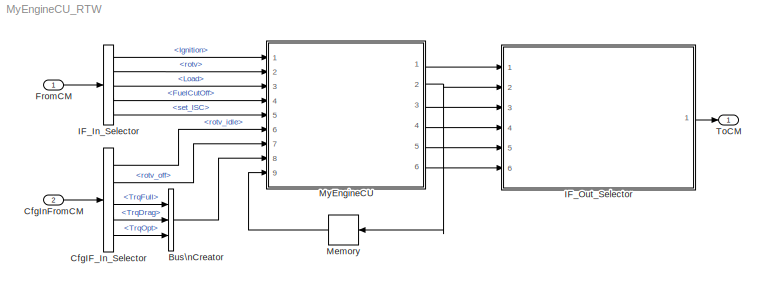
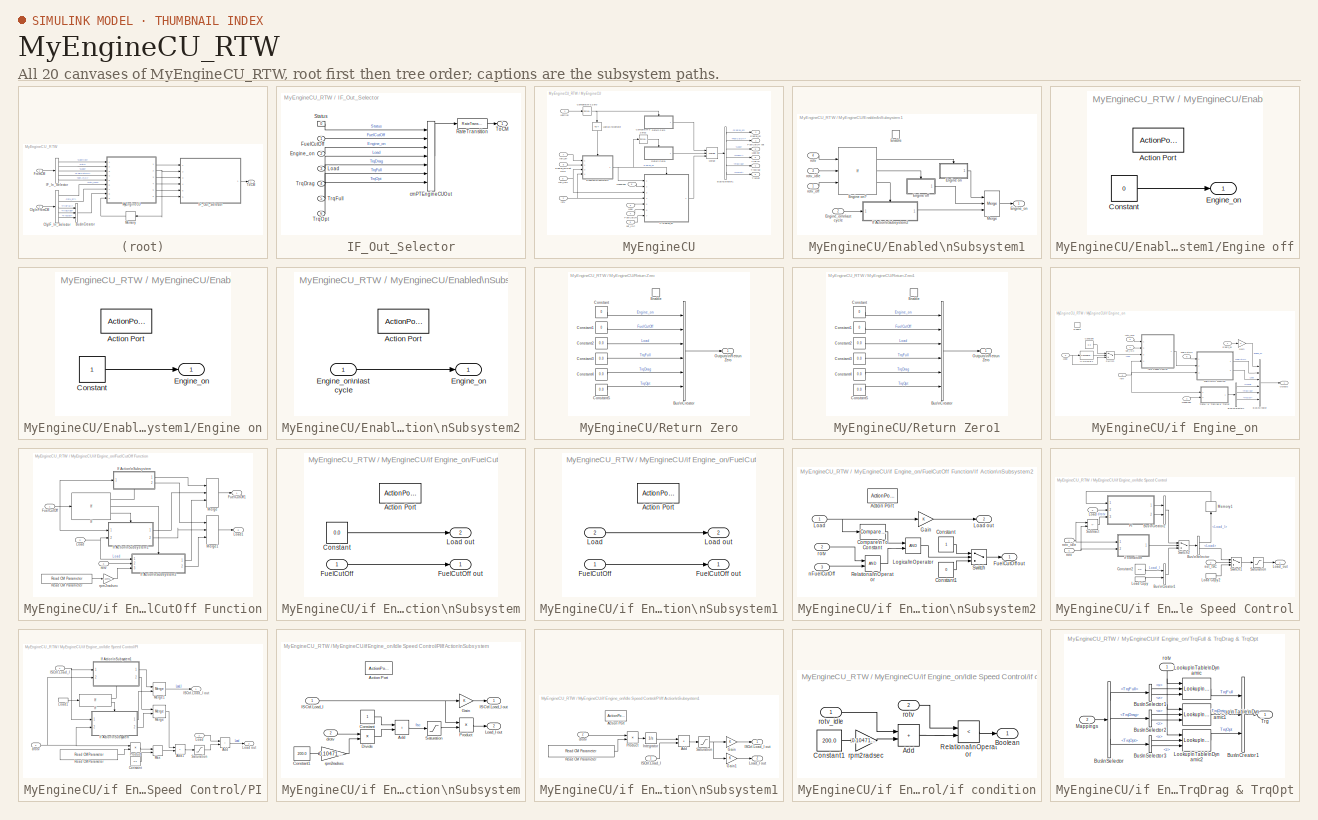
[diagram: thumbnail index - all 20 canvases of the model, root first then tree order]
MODEL MyEngineCU_RTW
KIND model
CONFIG InitFcn = vehicle = 'Car'; if ~length(which('cmcmd')), cmenv; end\nMyEngineCU_RTW_bus
CONFIG PreLoadFcn = vehicle = 'Car'; if ~length(which('cmcmd')), cmenv; end\nMyEngineCU_RTW_bus
BLOCK [BusCreator] Bus\nCreator
  DisplayOption = bar
  InheritFromInputs = on
  Inputs = 3
  Ports = [3, 1]
  SID = 19
BLOCK [BusSelector] CfgIF_In_Selector
  OutputSignals = rotv_idle,rotv_off,TrqFull,TrqDrag,TrqOpt
  Ports = [1, 5]
  SID = 9
BLOCK [Inport] CfgInFromCM
  OutDataTypeStr = Bus: cmPTEngineCUCfgIn
  Port = 2
  SID = 8
BLOCK [Inport] FromCM
  OutDataTypeStr = Bus: cmPTEngineCUIn
  SID = 1
BLOCK [BusSelector] IF_In_Selector
  OutputSignals = Ignition,rotv,Load,FuelCutOff,set_ISC
  Ports = [1, 5]
  SID = 2
BLOCK [SubSystem] IF_Out_Selector
  OpenFcn = cmSignalSelect('SignalSelection_CB',gcb)
  Ports = [6, 1]
  RequestExecContextInheritance = off
  SID = 5
  UserData = DataTag0
  UserDataPersistent = on
BLOCK [Inport] IF_Out_Selector/Engine_on
  Port = 2
  SID = 217
BLOCK [Inport] IF_Out_Selector/FuelCutOff
  SID = 216
BLOCK [Inport] IF_Out_Selector/Load
  Port = 3
  SID = 218
BLOCK [RateTransition] IF_Out_Selector/RateTransition
  OutPortSampleTime = str2num(get_param(bdroot,'FixedStep'))
  SID = 6
BLOCK [Constant] IF_Out_Selector/Status
  SID = 12
  Value = 0
BLOCK [Outport] IF_Out_Selector/ToCM
  SID = 7
  VectorParamsAs1DForOutWhenUnconnected = off
BLOCK [Inport] IF_Out_Selector/TrqDrag
  Port = 4
  SID = 219
BLOCK [Inport] IF_Out_Selector/TrqFull
  Port = 5
  SID = 220
BLOCK [Inport] IF_Out_Selector/TrqOpt
  Port = 6
  SID = 221
BLOCK [BusCreator] IF_Out_Selector/cmPTEngineCUOut
  InheritFromInputs = on
  Inputs = 7
  Ports = [7, 1]
  SID = 11
BLOCK [Memory] Memory
  SID = 20
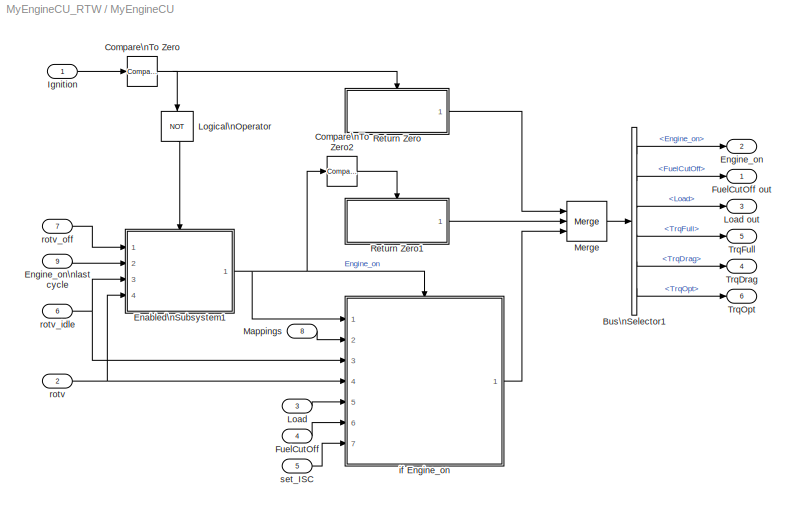
BLOCK [SubSystem] MyEngineCU
  Ports = [9, 6]
  RequestExecContextInheritance = off
  SID = 21
BLOCK [BusSelector] MyEngineCU/Bus\nSelector1
  OutputSignals = Engine_on,FuelCutOff,Load,TrqFull,TrqDrag,TrqOpt
  Ports = [1, 6]
  SID = 31
BLOCK [Reference] MyEngineCU/Compare\nTo Zero  REF=simulink/Logic and Bit\nOperations/Compare\nTo Zero
  OutDataTypeStr = uint8
  Ports = [1, 1]
  SID = 32
  SourceBlock = simulink/Logic and Bit\nOperations/Compare\nTo Zero
  SourceProductBaseCode = SL
  SourceType = Compare To Zero
  ZeroCross = off
  relop = ==
BLOCK [Reference] MyEngineCU/Compare\nTo Zero2  REF=simulink/Logic and Bit\nOperations/Compare\nTo Zero
  NameLocation = top
  OutDataTypeStr = uint8
  Ports = [1, 1]
  SID = 33
  SourceBlock = simulink/Logic and Bit\nOperations/Compare\nTo Zero
  SourceProductBaseCode = SL
  SourceType = Compare To Zero
  ZeroCross = off
  relop = ==
BLOCK [SubSystem] MyEngineCU/Enabled\nSubsystem1
  Ports = [4, 1, 1]
  RequestExecContextInheritance = off
  SID = 34
  TreatAsAtomicUnit = on
BLOCK [EnablePort] MyEngineCU/Enabled\nSubsystem1/Enable
  Ports = []
  SID = 39
BLOCK [SubSystem] MyEngineCU/Enabled\nSubsystem1/Engine off
  Ports = [0, 1, 0, 0, 0, 0, 0, 1]
  RequestExecContextInheritance = off
  SID = 40
  TreatAsAtomicUnit = on
BLOCK [ActionPort] MyEngineCU/Enabled\nSubsystem1/Engine off/Action Port
  ActionPortLabel = elseif { }
  SID = 41
BLOCK [Constant] MyEngineCU/Enabled\nSubsystem1/Engine off/Constant
  SID = 42
  Value = 0
BLOCK [Outport] MyEngineCU/Enabled\nSubsystem1/Engine off/Engine_on
  InitialOutput = 0
  SID = 43
  VectorParamsAs1DForOutWhenUnconnected = off
BLOCK [SubSystem] MyEngineCU/Enabled\nSubsystem1/Engine on
  Ports = [0, 1, 0, 0, 0, 0, 0, 1]
  RequestExecContextInheritance = off
  SID = 44
  TreatAsAtomicUnit = on
BLOCK [ActionPort] MyEngineCU/Enabled\nSubsystem1/Engine on/Action Port
  ActionPortLabel = if { }
  SID = 45
BLOCK [Constant] MyEngineCU/Enabled\nSubsystem1/Engine on/Constant
  SID = 46
BLOCK [Outport] MyEngineCU/Enabled\nSubsystem1/Engine on/Engine_on
  InitialOutput = 1
  SID = 47
  VectorParamsAs1DForOutWhenUnconnected = off
BLOCK [If] MyEngineCU/Enabled\nSubsystem1/Engine on?
  ElseIfExpressions = u1 < u3
  IfExpression = u1 > u2
  NumInputs = 3
  Ports = [3, 3]
  SID = 48
BLOCK [Outport] MyEngineCU/Enabled\nSubsystem1/Engine_on
  SID = 54
  VectorParamsAs1DForOutWhenUnconnected = off
BLOCK [Inport] MyEngineCU/Enabled\nSubsystem1/Engine_on\nlast cycle
  Port = 2
  SID = 36
BLOCK [SubSystem] MyEngineCU/Enabled\nSubsystem1/If Action\nSubsystem2
  Ports = [1, 1, 0, 0, 0, 0, 0, 1]
  RequestExecContextInheritance = off
  SID = 49
  TreatAsAtomicUnit = on
BLOCK [ActionPort] MyEngineCU/Enabled\nSubsystem1/If Action\nSubsystem2/Action Port
  ActionPortLabel = else { }
  SID = 51
BLOCK [Outport] MyEngineCU/Enabled\nSubsystem1/If Action\nSubsystem2/Engine_on
  SID = 52
  VectorParamsAs1DForOutWhenUnconnected = off
BLOCK [Inport] MyEngineCU/Enabled\nSubsystem1/If Action\nSubsystem2/Engine_on\nlast cycle
  SID = 50
BLOCK [Merge] MyEngineCU/Enabled\nSubsystem1/Merge
  Inputs = 3
  Ports = [3, 1]
  SID = 53
BLOCK [Inport] MyEngineCU/Enabled\nSubsystem1/rotv
  Port = 4
  SID = 38
BLOCK [Inport] MyEngineCU/Enabled\nSubsystem1/rotv_idle
  Port = 3
  SID = 37
BLOCK [Inport] MyEngineCU/Enabled\nSubsystem1/rotv_off
  SID = 35
BLOCK [Outport] MyEngineCU/Engine_on
  Port = 2
  SID = 211
  VectorParamsAs1DForOutWhenUnconnected = off
BLOCK [Inport] MyEngineCU/Engine_on\nlast cycle
  Port = 9
  SID = 30
BLOCK [Inport] MyEngineCU/FuelCutOff
  Port = 4
  SID = 25
BLOCK [Outport] MyEngineCU/FuelCutOff out
  SID = 210
  VectorParamsAs1DForOutWhenUnconnected = off
BLOCK [Inport] MyEngineCU/Ignition
  SID = 22
BLOCK [Inport] MyEngineCU/Load
  Port = 3
  SID = 24
BLOCK [Outport] MyEngineCU/Load out
  Port = 3
  SID = 212
  VectorParamsAs1DForOutWhenUnconnected = off
BLOCK [Logic] MyEngineCU/Logical\nOperator
  AllPortsSameDT = off
  NameLocation = left
  Operator = NOT
  OutDataTypeStr = boolean
  Ports = [1, 1]
  SID = 55
BLOCK [Inport] MyEngineCU/Mappings
  Port = 8
  SID = 29
BLOCK [Merge] MyEngineCU/Merge
  Inputs = 3
  Ports = [3, 1]
  SID = 56
BLOCK [SubSystem] MyEngineCU/Return Zero
  Ports = [0, 1, 1]
  RequestExecContextInheritance = off
  SID = 57
  TreatAsAtomicUnit = on
BLOCK [BusCreator] MyEngineCU/Return Zero/Bus\nCreator
  DisplayOption = bar
  InheritFromInputs = on
  Inputs = 6
  Ports = [6, 1]
  SID = 59
BLOCK [Constant] MyEngineCU/Return Zero/Constant
  SID = 60
  Value = 0
BLOCK [Constant] MyEngineCU/Return Zero/Constant1
  SID = 61
  Value = 0
BLOCK [Constant] MyEngineCU/Return Zero/Constant2
  SID = 62
  Value = 0.0
BLOCK [Constant] MyEngineCU/Return Zero/Constant3
  SID = 63
  Value = 0.0
BLOCK [Constant] MyEngineCU/Return Zero/Constant4
  SID = 64
  Value = 0.0
BLOCK [Constant] MyEngineCU/Return Zero/Constant5
  SID = 65
  Value = 0.0
BLOCK [EnablePort] MyEngineCU/Return Zero/Enable
  Ports = []
  SID = 58
BLOCK [Outport] MyEngineCU/Return Zero/Outputs\nRetrun Zero
  InitialOutput = 0
  SID = 66
  VectorParamsAs1DForOutWhenUnconnected = off
BLOCK [SubSystem] MyEngineCU/Return Zero1
  Ports = [0, 1, 1]
  RequestExecContextInheritance = off
  SID = 67
  TreatAsAtomicUnit = on
BLOCK [BusCreator] MyEngineCU/Return Zero1/Bus\nCreator
  DisplayOption = bar
  InheritFromInputs = on
  Inputs = 6
  Ports = [6, 1]
  SID = 69
BLOCK [Constant] MyEngineCU/Return Zero1/Constant
  SID = 70
  Value = 0
BLOCK [Constant] MyEngineCU/Return Zero1/Constant1
  SID = 71
  Value = 0
BLOCK [Constant] MyEngineCU/Return Zero1/Constant2
  SID = 72
  Value = 0.0
BLOCK [Constant] MyEngineCU/Return Zero1/Constant3
  SID = 73
  Value = 0.0
BLOCK [Constant] MyEngineCU/Return Zero1/Constant4
  SID = 74
  Value = 0.0
BLOCK [Constant] MyEngineCU/Return Zero1/Constant5
  SID = 75
  Value = 0.0
BLOCK [EnablePort] MyEngineCU/Return Zero1/Enable
  Ports = []
  SID = 68
BLOCK [Outport] MyEngineCU/Return Zero1/Outputs\nRetrun Zero
  InitialOutput = 0
  SID = 76
  VectorParamsAs1DForOutWhenUnconnected = off
BLOCK [Outport] MyEngineCU/TrqDrag
  Port = 4
  SID = 213
  VectorParamsAs1DForOutWhenUnconnected = off
BLOCK [Outport] MyEngineCU/TrqFull
  Port = 5
  SID = 214
  VectorParamsAs1DForOutWhenUnconnected = off
BLOCK [Outport] MyEngineCU/TrqOpt
  Port = 6
  SID = 215
  VectorParamsAs1DForOutWhenUnconnected = off
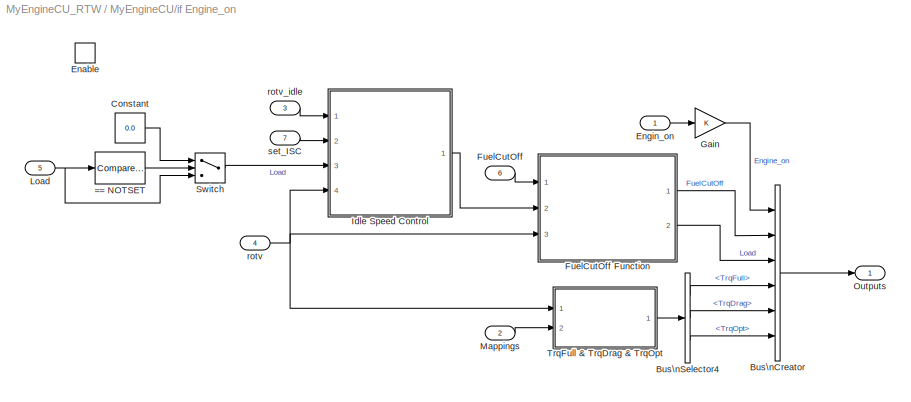
BLOCK [SubSystem] MyEngineCU/if Engine_on
  Ports = [7, 1, 1]
  RequestExecContextInheritance = off
  SID = 77
  TreatAsAtomicUnit = on
BLOCK [Reference] MyEngineCU/if Engine_on/== NOTSET  REF=simulink/Logic and Bit\nOperations/Compare\nTo Constant
  OutDataTypeStr = uint8
  Ports = [1, 1]
  SID = 86
  SourceBlock = simulink/Logic and Bit\nOperations/Compare\nTo Constant
  SourceProductBaseCode = SL
  SourceType = Compare To Constant
  ZeroCross = off
  const = -9999
  relop = ==
BLOCK [BusCreator] MyEngineCU/if Engine_on/Bus\nCreator
  DisplayOption = bar
  InheritFromInputs = on
  Inputs = 6
  Ports = [6, 1]
  SID = 87
BLOCK [BusSelector] MyEngineCU/if Engine_on/Bus\nSelector4
  OutputSignals = TrqFull,TrqDrag,TrqOpt
  Ports = [1, 3]
  SID = 88
BLOCK [Constant] MyEngineCU/if Engine_on/Constant
  SID = 89
  Value = 0.0
BLOCK [EnablePort] MyEngineCU/if Engine_on/Enable
  Ports = []
  SID = 85
BLOCK [Inport] MyEngineCU/if Engine_on/Engin_on
  SID = 78
BLOCK [Inport] MyEngineCU/if Engine_on/FuelCutOff
  Port = 6
  SID = 83
BLOCK [SubSystem] MyEngineCU/if Engine_on/FuelCutOff Function
  Ports = [3, 2]
  RequestExecContextInheritance = off
  SID = 90
BLOCK [Inport] MyEngineCU/if Engine_on/FuelCutOff Function/FuelCutOff
  SID = 91
BLOCK [Outport] MyEngineCU/if Engine_on/FuelCutOff Function/FuelCutOff1
  SID = 125
  VectorParamsAs1DForOutWhenUnconnected = off
BLOCK [If] MyEngineCU/if Engine_on/FuelCutOff Function/If
  ElseIfExpressions = u1 == -99999
  IfExpression = u1 == 1
  Ports = [1, 3]
  SID = 94
BLOCK [SubSystem] MyEngineCU/if Engine_on/FuelCutOff Function/If Action\nSubsystem
  NameLocation = top
  Ports = [1, 2, 0, 0, 0, 0, 0, 1]
  RequestExecContextInheritance = off
  SID = 95
  TreatAsAtomicUnit = on
BLOCK [ActionPort] MyEngineCU/if Engine_on/FuelCutOff Function/If Action\nSubsystem/Action Port
  ActionPortLabel = if { }
  SID = 97
BLOCK [Constant] MyEngineCU/if Engine_on/FuelCutOff Function/If Action\nSubsystem/Constant
  SID = 98
  Value = 0.0
BLOCK [Inport] MyEngineCU/if Engine_on/FuelCutOff Function/If Action\nSubsystem/FuelCutOff
  SID = 96
BLOCK [Outport] MyEngineCU/if Engine_on/FuelCutOff Function/If Action\nSubsystem/FuelCutOff out
  SID = 99
  VectorParamsAs1DForOutWhenUnconnected = off
BLOCK [Outport] MyEngineCU/if Engine_on/FuelCutOff Function/If Action\nSubsystem/Load out
  InitialOutput = 0
  Port = 2
  SID = 100
  VectorParamsAs1DForOutWhenUnconnected = off
BLOCK [SubSystem] MyEngineCU/if Engine_on/FuelCutOff Function/If Action\nSubsystem1
  Ports = [2, 2, 0, 0, 0, 0, 0, 1]
  RequestExecContextInheritance = off
  SID = 101
  TreatAsAtomicUnit = on
BLOCK [ActionPort] MyEngineCU/if Engine_on/FuelCutOff Function/If Action\nSubsystem1/Action Port
  ActionPortLabel = else { }
  SID = 104
BLOCK [Inport] MyEngineCU/if Engine_on/FuelCutOff Function/If Action\nSubsystem1/FuelCutOff
  SID = 102
BLOCK [Outport] MyEngineCU/if Engine_on/FuelCutOff Function/If Action\nSubsystem1/FuelCutOff out
  SID = 105
  VectorParamsAs1DForOutWhenUnconnected = off
BLOCK [Inport] MyEngineCU/if Engine_on/FuelCutOff Function/If Action\nSubsystem1/Load
  Port = 2
  SID = 103
BLOCK [Outport] MyEngineCU/if Engine_on/FuelCutOff Function/If Action\nSubsystem1/Load out
  Port = 2
  SID = 106
  VectorParamsAs1DForOutWhenUnconnected = off
BLOCK [SubSystem] MyEngineCU/if Engine_on/FuelCutOff Function/If Action\nSubsystem2
  Ports = [3, 2, 0, 0, 0, 0, 0, 1]
  RequestExecContextInheritance = off
  SID = 107
  TreatAsAtomicUnit = on
BLOCK [ActionPort] MyEngineCU/if Engine_on/FuelCutOff Function/If Action\nSubsystem2/Action Port
  ActionPortLabel = elseif { }
  SID = 111
BLOCK [Reference] MyEngineCU/if Engine_on/FuelCutOff Function/If Action\nSubsystem2/Compare\nTo Constant  REF=simulink/Logic and Bit\nOperations/Compare\nTo Constant
  OutDataTypeStr = uint8
  Ports = [1, 1]
  SID = 112
  SourceBlock = simulink/Logic and Bit\nOperations/Compare\nTo Constant
  SourceProductBaseCode = SL
  SourceType = Compare To Constant
  ZeroCross = off
  const = 1e-3
  relop = <=
BLOCK [Constant] MyEngineCU/if Engine_on/FuelCutOff Function/If Action\nSubsystem2/Constant
  SID = 113
BLOCK [Constant] MyEngineCU/if Engine_on/FuelCutOff Function/If Action\nSubsystem2/Constant1
  SID = 114
  Value = 0
BLOCK [Outport] MyEngineCU/if Engine_on/FuelCutOff Function/If Action\nSubsystem2/FuelCutOff out
  SID = 119
  VectorParamsAs1DForOutWhenUnconnected = off
BLOCK [Gain] MyEngineCU/if Engine_on/FuelCutOff Function/If Action\nSubsystem2/Gain
  SID = 115
BLOCK [Inport] MyEngineCU/if Engine_on/FuelCutOff Function/If Action\nSubsystem2/Load
  SID = 108
BLOCK [Outport] MyEngineCU/if Engine_on/FuelCutOff Function/If Action\nSubsystem2/Load out
  Port = 2
  SID = 120
  VectorParamsAs1DForOutWhenUnconnected = off
BLOCK [Logic] MyEngineCU/if Engine_on/FuelCutOff Function/If Action\nSubsystem2/Logical\nOperator
  AllPortsSameDT = off
  OutDataTypeStr = boolean
  Ports = [2, 1]
  SID = 116
BLOCK [RelationalOperator] MyEngineCU/if Engine_on/FuelCutOff Function/If Action\nSubsystem2/Relational\nOperator
  InputSameDT = off
  OutDataTypeStr = boolean
  Ports = [2, 1]
  SID = 117
BLOCK [Switch] MyEngineCU/if Engine_on/FuelCutOff Function/If Action\nSubsystem2/Switch
  Criteria = u2 ~= 0
  InputSameDT = off
  SID = 118
  SaturateOnIntegerOverflow = off
BLOCK [Inport] MyEngineCU/if Engine_on/FuelCutOff Function/If Action\nSubsystem2/nFuelCutOff
  Port = 3
  SID = 110
BLOCK [Inport] MyEngineCU/if Engine_on/FuelCutOff Function/If Action\nSubsystem2/rotv
  Port = 2
  SID = 109
BLOCK [Inport] MyEngineCU/if Engine_on/FuelCutOff Function/Load
  Port = 2
  SID = 92
BLOCK [Outport] MyEngineCU/if Engine_on/FuelCutOff Function/Load1
  Port = 2
  SID = 126
  VectorParamsAs1DForOutWhenUnconnected = off
BLOCK [Merge] MyEngineCU/if Engine_on/FuelCutOff Function/Merge
  Inputs = 3
  Ports = [3, 1]
  SID = 121
BLOCK [Merge] MyEngineCU/if Engine_on/FuelCutOff Function/Merge1
  Inputs = 3
  Ports = [3, 1]
  SID = 122
BLOCK [Reference] MyEngineCU/if Engine_on/FuelCutOff Function/Read CM Parameter  REF=CarMaker4SL/Read CM Parameter
  Ports = [0, 1]
  SID = 123
  SourceBlock = CarMaker4SL/Read CM Parameter
  SourceProductName = CarMaker4SL
  SourceType = Read CarMaker Info File Parameter
  xdefaults = 1600
  xfile = Vehicle
  xkey = PowerTrain.ECU.FuelCutOff
  xmuxed = on
  xnout = 1
BLOCK [Inport] MyEngineCU/if Engine_on/FuelCutOff Function/rotv
  Port = 3
  SID = 93
BLOCK [Gain] MyEngineCU/if Engine_on/FuelCutOff Function/rpm2radsec
  Gain = 0.104719755
  SID = 124
BLOCK [Gain] MyEngineCU/if Engine_on/Gain
  SID = 127
BLOCK [SubSystem] MyEngineCU/if Engine_on/Idle Speed Control
  Ports = [4, 1]
  RequestExecContextInheritance = off
  SID = 128
BLOCK [BusCreator] MyEngineCU/if Engine_on/Idle Speed Control/Bus\nCreator1
  DisplayOption = bar
  InheritFromInputs = on
  Inputs = 2
  Ports = [2, 1]
  SID = 133
BLOCK [BusCreator] MyEngineCU/if Engine_on/Idle Speed Control/Bus\nCreator2
  DisplayOption = bar
  InheritFromInputs = on
  Inputs = 2
  Ports = [2, 1]
  SID = 134
BLOCK [BusSelector] MyEngineCU/if Engine_on/Idle Speed Control/Bus\nSelector
  OutputSignals = Load_I,Load
  Ports = [1, 2]
  SID = 135
BLOCK [Constant] MyEngineCU/if Engine_on/Idle Speed Control/Constant2
  SID = 136
  Value = 0.0
BLOCK [Inport] MyEngineCU/if Engine_on/Idle Speed Control/Load
  Port = 3
  SID = 131
BLOCK [InportShadow] MyEngineCU/if Engine_on/Idle Speed Control/Load Copy
  Port = 3
  SID = 137
BLOCK [InportShadow] MyEngineCU/if Engine_on/Idle Speed Control/Load Copy2
  Port = 3
  SID = 138
BLOCK [Outport] MyEngineCU/if Engine_on/Idle Speed Control/Load_out
  SID = 195
  VectorParamsAs1DForOutWhenUnconnected = off
BLOCK [Memory] MyEngineCU/if Engine_on/Idle Speed Control/Memory1
  InheritSampleTime = on
  NameLocation = left
  SID = 139
BLOCK [SubSystem] MyEngineCU/if Engine_on/Idle Speed Control/PI
  Ports = [3, 2]
  RequestExecContextInheritance = off
  SID = 140
BLOCK [Sum] MyEngineCU/if Engine_on/Idle Speed Control/PI/Add
  IconShape = rectangular
  Ports = [2, 1]
  SID = 144
BLOCK [Sum] MyEngineCU/if Engine_on/Idle Speed Control/PI/Add1
  IconShape = rectangular
  Ports = [2, 1]
  SID = 145
BLOCK [Constant] MyEngineCU/if Engine_on/Idle Speed Control/PI/Constant
  SID = 146
  Value = 0.0
BLOCK [Inport] MyEngineCU/if Engine_on/Idle Speed Control/PI/ISCtrl.Load_I
  SID = 141
BLOCK [Outport] MyEngineCU/if Engine_on/Idle Speed Control/PI/ISCtrl.Load_I out
  SID = 181
  VectorParamsAs1DForOutWhenUnconnected = off
BLOCK [If] MyEngineCU/if Engine_on/Idle Speed Control/PI/If
  IfExpression = u1 < 1e-3
  Ports = [1, 2]
  SID = 147
BLOCK [SubSystem] MyEngineCU/if Engine_on/Idle Speed Control/PI/If Action\nSubsystem
  Ports = [2, 2, 0, 0, 0, 0, 0, 1]
  RequestExecContextInheritance = off
  SID = 148
  TreatAsAtomicUnit = on
BLOCK [ActionPort] MyEngineCU/if Engine_on/Idle Speed Control/PI/If Action\nSubsystem/Action Port
  ActionPortLabel = else { }
  SID = 151
BLOCK [Sum] MyEngineCU/if Engine_on/Idle Speed Control/PI/If Action\nSubsystem/Add
  IconShape = rectangular
  Ports = [2, 1]
  SID = 152
BLOCK [Constant] MyEngineCU/if Engine_on/Idle Speed Control/PI/If Action\nSubsystem/Constant
  SID = 153
BLOCK [Constant] MyEngineCU/if Engine_on/Idle Speed Control/PI/If Action\nSubsystem/Constant1
  SID = 154
  Value = 200.0
BLOCK [Product] MyEngineCU/if Engine_on/Idle Speed Control/PI/If Action\nSubsystem/Divide
  Inputs = */
  Ports = [2, 1]
  SID = 155
BLOCK [Gain] MyEngineCU/if Engine_on/Idle Speed Control/PI/If Action\nSubsystem/Gain
  SID = 156
BLOCK [Inport] MyEngineCU/if Engine_on/Idle Speed Control/PI/If Action\nSubsystem/ISCtrl.Load_I
  SID = 149
BLOCK [Outport] MyEngineCU/if Engine_on/Idle Speed Control/PI/If Action\nSubsystem/ISCtrl.Load_I out
  SID = 160
  VectorParamsAs1DForOutWhenUnconnected = off
BLOCK [Outport] MyEngineCU/if Engine_on/Idle Speed Control/PI/If Action\nSubsystem/Load_I out
  Port = 2
  SID = 161
  VectorParamsAs1DForOutWhenUnconnected = off
BLOCK [Product] MyEngineCU/if Engine_on/Idle Speed Control/PI/If Action\nSubsystem/Product
  Ports = [2, 1]
  RndMeth = Zero
  SID = 157
BLOCK [Saturate] MyEngineCU/if Engine_on/Idle Speed Control/PI/If Action\nSubsystem/Saturation
  LowerLimit = 0
  SID = 158
  UpperLimit = 1
BLOCK [Inport] MyEngineCU/if Engine_on/Idle Speed Control/PI/If Action\nSubsystem/drotv
  Port = 2
  SID = 150
BLOCK [Gain] MyEngineCU/if Engine_on/Idle Speed Control/PI/If Action\nSubsystem/rpm2radsec
  Gain = 0.104719755
  SID = 159
BLOCK [SubSystem] MyEngineCU/if Engine_on/Idle Speed Control/PI/If Action\nSubsystem1
  NameLocation = top
  Ports = [2, 2, 0, 0, 0, 0, 0, 1]
  RequestExecContextInheritance = off
  SID = 162
  TreatAsAtomicUnit = on
BLOCK [ActionPort] MyEngineCU/if Engine_on/Idle Speed Control/PI/If Action\nSubsystem1/Action Port
  ActionPortLabel = if { }
  SID = 165
BLOCK [Sum] MyEngineCU/if Engine_on/Idle Speed Control/PI/If Action\nSubsystem1/Add
  IconShape = rectangular
  Ports = [2, 1]
  SID = 166
BLOCK [Gain] MyEngineCU/if Engine_on/Idle Speed Control/PI/If Action\nSubsystem1/Gain
  SID = 167
BLOCK [Gain] MyEngineCU/if Engine_on/Idle Speed Control/PI/If Action\nSubsystem1/Gain1
  SID = 168
BLOCK [Inport] MyEngineCU/if Engine_on/Idle Speed Control/PI/If Action\nSubsystem1/ISCtrl.Load_I
  SID = 163
BLOCK [Outport] MyEngineCU/if Engine_on/Idle Speed Control/PI/If Action\nSubsystem1/ISCtrl.Load_I out
  SID = 172
  VectorParamsAs1DForOutWhenUnconnected = off
BLOCK [Integrator] MyEngineCU/if Engine_on/Idle Speed Control/PI/If Action\nSubsystem1/Integrator
  Ports = [1, 1]
  SID = 222
BLOCK [Outport] MyEngineCU/if Engine_on/Idle Speed Control/PI/If Action\nSubsystem1/Load_I out
  Port = 2
  SID = 173
  VectorParamsAs1DForOutWhenUnconnected = off
BLOCK [Product] MyEngineCU/if Engine_on/Idle Speed Control/PI/If Action\nSubsystem1/Product
  Ports = [2, 1]
  RndMeth = Zero
  SID = 169
BLOCK [Reference] MyEngineCU/if Engine_on/Idle Speed Control/PI/If Action\nSubsystem1/Read CM Parameter  REF=CarMaker4SL/Read CM Parameter
  Ports = [0, 1]
  SID = 170
  SourceBlock = CarMaker4SL/Read CM Parameter
  SourceProductName = CarMaker4SL
  SourceType = Read CarMaker Info File Parameter
  xdefaults = []
  xfile = Vehicle
  xkey = PowerTrain.MyEngineCU.ISCtrl.I
  xmuxed = on
  xnout = 1
BLOCK [Saturate] MyEngineCU/if Engine_on/Idle Speed Control/PI/If Action\nSubsystem1/Saturation
  LowerLimit = 0
  SID = 171
  UpperLimit = 1
BLOCK [Inport] MyEngineCU/if Engine_on/Idle Speed Control/PI/If Action\nSubsystem1/drotv
  Port = 2
  SID = 164
BLOCK [Inport] MyEngineCU/if Engine_on/Idle Speed Control/PI/Load
  Port = 2
  SID = 142
BLOCK [Outport] MyEngineCU/if Engine_on/Idle Speed Control/PI/Load out
  Port = 2
  SID = 182
  VectorParamsAs1DForOutWhenUnconnected = off
BLOCK [InportShadow] MyEngineCU/if Engine_on/Idle Speed Control/PI/Load1
  Port = 2
  SID = 174
BLOCK [MinMax] MyEngineCU/if Engine_on/Idle Speed Control/PI/Max
  Function = max
  Inputs = 2
  Ports = [2, 1]
  SID = 175
BLOCK [Merge] MyEngineCU/if Engine_on/Idle Speed Control/PI/Merge
  Ports = [2, 1]
  SID = 176
BLOCK [Merge] MyEngineCU/if Engine_on/Idle Speed Control/PI/Merge1
  Ports = [2, 1]
  SID = 177
BLOCK [Product] MyEngineCU/if Engine_on/Idle Speed Control/PI/Product
  Ports = [2, 1]
  RndMeth = Zero
  SID = 178
BLOCK [Reference] MyEngineCU/if Engine_on/Idle Speed Control/PI/Read CM Parameter  REF=CarMaker4SL/Read CM Parameter
  Ports = [0, 1]
  SID = 179
  SourceBlock = CarMaker4SL/Read CM Parameter
  SourceProductName = CarMaker4SL
  SourceType = Read CarMaker Info File Parameter
  xdefaults = 0.1
  xfile = Vehicle
  xkey = PowerTrain.MyEngineCU.ISCtrl.P
  xmuxed = on
  xnout = 1
BLOCK [Saturate] MyEngineCU/if Engine_on/Idle Speed Control/PI/Saturation
  LowerLimit = 0
  SID = 180
  UpperLimit = 1
BLOCK [Inport] MyEngineCU/if Engine_on/Idle Speed Control/PI/drotv
  Port = 3
  SID = 143
BLOCK [Saturate] MyEngineCU/if Engine_on/Idle Speed Control/Saturation
  LowerLimit = 0
  SID = 183
  UpperLimit = 1
BLOCK [Sum] MyEngineCU/if Engine_on/Idle Speed Control/Subtract
  IconShape = rectangular
  Inputs = +-
  Ports = [2, 1]
  SID = 184
BLOCK [Switch] MyEngineCU/if Engine_on/Idle Speed Control/Switch1
  Criteria = u2 ~= 0
  InputSameDT = off
  NameLocation = top
  SID = 185
  SaturateOnIntegerOverflow = off
BLOCK [Switch] MyEngineCU/if Engine_on/Idle Speed Control/Switch2
  Criteria = u2 ~= 0
  InputSameDT = off
  NameLocation = top
  SID = 186
  SaturateOnIntegerOverflow = off
BLOCK [SubSystem] MyEngineCU/if Engine_on/Idle Speed Control/if condition
  Ports = [2, 1]
  RequestExecContextInheritance = off
  SID = 187
BLOCK [Sum] MyEngineCU/if Engine_on/Idle Speed Control/if condition/Add
  IconShape = rectangular
  Ports = [2, 1]
  SID = 190
BLOCK [Outport] MyEngineCU/if Engine_on/Idle Speed Control/if condition/Boolean
  SID = 194
  VectorParamsAs1DForOutWhenUnconnected = off
BLOCK [Constant] MyEngineCU/if Engine_on/Idle Speed Control/if condition/Constant1
  SID = 191
  Value = 200.0
BLOCK [RelationalOperator] MyEngineCU/if Engine_on/Idle Speed Control/if condition/Relational\nOperator
  InputSameDT = off
  Operator = <
  OutDataTypeStr = boolean
  Ports = [2, 1]
  SID = 192
BLOCK [Inport] MyEngineCU/if Engine_on/Idle Speed Control/if condition/rotv
  Port = 2
  SID = 189
BLOCK [Inport] MyEngineCU/if Engine_on/Idle Speed Control/if condition/rotv_idle
  SID = 188
BLOCK [Gain] MyEngineCU/if Engine_on/Idle Speed Control/if condition/rpm2radsec
  Gain = 0.104719755
  SID = 193
BLOCK [Inport] MyEngineCU/if Engine_on/Idle Speed Control/rotv
  Port = 4
  SID = 132
BLOCK [Inport] MyEngineCU/if Engine_on/Idle Speed Control/rotv_idle
  SID = 129
BLOCK [Inport] MyEngineCU/if Engine_on/Idle Speed Control/set_ISC
  Port = 2
  SID = 130
BLOCK [Inport] MyEngineCU/if Engine_on/Load
  Port = 5
  SID = 82
BLOCK [Inport] MyEngineCU/if Engine_on/Mappings
  Port = 2
  SID = 79
BLOCK [Outport] MyEngineCU/if Engine_on/Outputs
  SID = 209
  VectorParamsAs1DForOutWhenUnconnected = off
BLOCK [Switch] MyEngineCU/if Engine_on/Switch
  Criteria = u2 ~= 0
  InputSameDT = off
  SID = 196
  SaturateOnIntegerOverflow = off
BLOCK [SubSystem] MyEngineCU/if Engine_on/TrqFull & TrqDrag & TrqOpt
  Ports = [2, 1]
  RequestExecContextInheritance = off
  SID = 197
BLOCK [BusCreator] MyEngineCU/if Engine_on/TrqFull & TrqDrag & TrqOpt/Bus\nCreator1
  DisplayOption = bar
  InheritFromInputs = on
  Inputs = 3
  Ports = [3, 1]
  SID = 200
BLOCK [BusSelector] MyEngineCU/if Engine_on/TrqFull & TrqDrag & TrqOpt/Bus\nSelector
  OutputSignals = TrqFull,TrqDrag,TrqOpt
  Ports = [1, 3]
  SID = 201
BLOCK [BusSelector] MyEngineCU/if Engine_on/TrqFull & TrqDrag & TrqOpt/Bus\nSelector1
  OutputSignals = x,z
  Ports = [1, 2]
  SID = 202
BLOCK [BusSelector] MyEngineCU/if Engine_on/TrqFull & TrqDrag & TrqOpt/Bus\nSelector2
  OutputSignals = x,z
  Ports = [1, 2]
  SID = 203
BLOCK [BusSelector] MyEngineCU/if Engine_on/TrqFull & TrqDrag & TrqOpt/Bus\nSelector3
  OutputSignals = x,z
  Ports = [1, 2]
  SID = 204
BLOCK [Reference] MyEngineCU/if Engine_on/TrqFull & TrqDrag & TrqOpt/Lookup\nTable\nDynamic  REF=simulink/Lookup\nTables/Lookup\nTable\nDynamic
  DoSatur = off
  LockScale = off
  LookUpMeth = Interpolation-Use End Values
  OutDataType = float('double')
  OutDataTypeStr = float('double')
  OutScaling = 2^-10
  OutputDataTypeScalingMode = Specify via dialog
  Ports = [3, 1]
  RndMeth = Floor
  SID = 205
  SourceBlock = simulink/Lookup\nTables/Lookup\nTable\nDynamic
  SourceProductBaseCode = SL
  SourceType = Lookup Table Dynamic
BLOCK [Reference] MyEngineCU/if Engine_on/TrqFull & TrqDrag & TrqOpt/Lookup\nTable\nDynamic1  REF=simulink/Lookup\nTables/Lookup\nTable\nDynamic
  DoSatur = off
  LockScale = off
  LookUpMeth = Interpolation-Use End Values
  OutDataType = float('double')
  OutDataTypeStr = float('double')
  OutScaling = 2^-10
  OutputDataTypeScalingMode = Specify via dialog
  Ports = [3, 1]
  RndMeth = Floor
  SID = 206
  SourceBlock = simulink/Lookup\nTables/Lookup\nTable\nDynamic
  SourceProductBaseCode = SL
  SourceType = Lookup Table Dynamic
BLOCK [Reference] MyEngineCU/if Engine_on/TrqFull & TrqDrag & TrqOpt/Lookup\nTable\nDynamic2  REF=simulink/Lookup\nTables/Lookup\nTable\nDynamic
  DoSatur = off
  LockScale = off
  LookUpMeth = Interpolation-Use End Values
  OutDataType = float('double')
  OutDataTypeStr = float('double')
  OutScaling = 2^-10
  OutputDataTypeScalingMode = Specify via dialog
  Ports = [3, 1]
  RndMeth = Floor
  SID = 207
  SourceBlock = simulink/Lookup\nTables/Lookup\nTable\nDynamic
  SourceProductBaseCode = SL
  SourceType = Lookup Table Dynamic
BLOCK [Inport] MyEngineCU/if Engine_on/TrqFull & TrqDrag & TrqOpt/Mappings
  Port = 2
  SID = 199
BLOCK [Outport] MyEngineCU/if Engine_on/TrqFull & TrqDrag & TrqOpt/Trg
  SID = 208
  VectorParamsAs1DForOutWhenUnconnected = off
BLOCK [Inport] MyEngineCU/if Engine_on/TrqFull & TrqDrag & TrqOpt/rotv
  NameLocation = right
  SID = 198
BLOCK [Inport] MyEngineCU/if Engine_on/rotv
  Port = 4
  SID = 81
BLOCK [Inport] MyEngineCU/if Engine_on/rotv_idle
  Port = 3
  SID = 80
BLOCK [Inport] MyEngineCU/if Engine_on/set_ISC
  Port = 7
  SID = 84
BLOCK [Inport] MyEngineCU/rotv
  Port = 2
  SID = 23
BLOCK [Inport] MyEngineCU/rotv_idle
  Port = 6
  SID = 27
BLOCK [Inport] MyEngineCU/rotv_off
  Port = 7
  SID = 28
BLOCK [Inport] MyEngineCU/set_ISC
  Port = 5
  SID = 26
BLOCK [Outport] ToCM
  OutDataTypeStr = Bus: cmPTEngineCUOut
  SID = 4
  VectorParamsAs1DForOutWhenUnconnected = off
LINE Bus\nCreator:1 -> MyEngineCU:8
LINE CfgIF_In_Selector:1 -> MyEngineCU:6
LINE CfgIF_In_Selector:2 -> MyEngineCU:7
LINE CfgIF_In_Selector:3 -> Bus\nCreator:1
LINE CfgIF_In_Selector:4 -> Bus\nCreator:2
LINE CfgIF_In_Selector:5 -> Bus\nCreator:3
LINE CfgInFromCM:1 -> CfgIF_In_Selector:1
LINE FromCM:1 -> IF_In_Selector:1
LINE IF_In_Selector:1 -> MyEngineCU:1
LINE IF_In_Selector:2 -> MyEngineCU:2
LINE IF_In_Selector:3 -> MyEngineCU:3
LINE IF_In_Selector:4 -> MyEngineCU:4
LINE IF_In_Selector:5 -> MyEngineCU:5
LINE IF_Out_Selector/Engine_on:1 -> IF_Out_Selector/cmPTEngineCUOut:3
LINE IF_Out_Selector/FuelCutOff:1 -> IF_Out_Selector/cmPTEngineCUOut:2
LINE IF_Out_Selector/Load:1 -> IF_Out_Selector/cmPTEngineCUOut:4
LINE IF_Out_Selector/RateTransition:1 -> IF_Out_Selector/ToCM:1
LINE IF_Out_Selector/Status:1 -> IF_Out_Selector/cmPTEngineCUOut:1
LINE IF_Out_Selector/TrqDrag:1 -> IF_Out_Selector/cmPTEngineCUOut:5
LINE IF_Out_Selector/TrqFull:1 -> IF_Out_Selector/cmPTEngineCUOut:6
LINE IF_Out_Selector/TrqOpt:1 -> IF_Out_Selector/cmPTEngineCUOut:7
LINE IF_Out_Selector/cmPTEngineCUOut:1 -> IF_Out_Selector/RateTransition:1
LINE IF_Out_Selector:1 -> ToCM:1
LINE Memory:1 -> MyEngineCU:9
LINE MyEngineCU/Bus\nSelector1:1 -> MyEngineCU/Engine_on:1
LINE MyEngineCU/Bus\nSelector1:2 -> MyEngineCU/FuelCutOff out:1
LINE MyEngineCU/Bus\nSelector1:3 -> MyEngineCU/Load out:1
LINE MyEngineCU/Bus\nSelector1:4 -> MyEngineCU/TrqFull:1
LINE MyEngineCU/Bus\nSelector1:5 -> MyEngineCU/TrqDrag:1
LINE MyEngineCU/Bus\nSelector1:6 -> MyEngineCU/TrqOpt:1
LINE MyEngineCU/Compare\nTo Zero2:1 -> MyEngineCU/Return Zero1:enable
NET MyEngineCU/Compare\nTo Zero:1 -> MyEngineCU/Logical\nOperator:1, MyEngineCU/Return Zero:enable
LINE MyEngineCU/Enabled\nSubsystem1/Engine off/Constant:1 -> MyEngineCU/Enabled\nSubsystem1/Engine off/Engine_on:1
LINE MyEngineCU/Enabled\nSubsystem1/Engine off:1 -> MyEngineCU/Enabled\nSubsystem1/Merge:2
LINE MyEngineCU/Enabled\nSubsystem1/Engine on/Constant:1 -> MyEngineCU/Enabled\nSubsystem1/Engine on/Engine_on:1
LINE MyEngineCU/Enabled\nSubsystem1/Engine on:1 -> MyEngineCU/Enabled\nSubsystem1/Merge:1
LINE MyEngineCU/Enabled\nSubsystem1/Engine on?:1 -> MyEngineCU/Enabled\nSubsystem1/Engine on:ifaction
LINE MyEngineCU/Enabled\nSubsystem1/Engine on?:2 -> MyEngineCU/Enabled\nSubsystem1/Engine off:ifaction
LINE MyEngineCU/Enabled\nSubsystem1/Engine on?:3 -> MyEngineCU/Enabled\nSubsystem1/If Action\nSubsystem2:ifaction
LINE MyEngineCU/Enabled\nSubsystem1/Engine_on\nlast cycle:1 -> MyEngineCU/Enabled\nSubsystem1/If Action\nSubsystem2:1
LINE MyEngineCU/Enabled\nSubsystem1/If Action\nSubsystem2/Engine_on\nlast cycle:1 -> MyEngineCU/Enabled\nSubsystem1/If Action\nSubsystem2/Engine_on:1
LINE MyEngineCU/Enabled\nSubsystem1/If Action\nSubsystem2:1 -> MyEngineCU/Enabled\nSubsystem1/Merge:3
LINE MyEngineCU/Enabled\nSubsystem1/Merge:1 -> MyEngineCU/Enabled\nSubsystem1/Engine_on:1
LINE MyEngineCU/Enabled\nSubsystem1/rotv:1 -> MyEngineCU/Enabled\nSubsystem1/Engine on?:1
LINE MyEngineCU/Enabled\nSubsystem1/rotv_idle:1 -> MyEngineCU/Enabled\nSubsystem1/Engine on?:2
LINE MyEngineCU/Enabled\nSubsystem1/rotv_off:1 -> MyEngineCU/Enabled\nSubsystem1/Engine on?:3
NET MyEngineCU/Enabled\nSubsystem1:1 -> MyEngineCU/Compare\nTo Zero2:1, MyEngineCU/if Engine_on:1, MyEngineCU/if Engine_on:enable
LINE MyEngineCU/Engine_on\nlast cycle:1 -> MyEngineCU/Enabled\nSubsystem1:2
LINE MyEngineCU/FuelCutOff:1 -> MyEngineCU/if Engine_on:6
LINE MyEngineCU/Ignition:1 -> MyEngineCU/Compare\nTo Zero:1
LINE MyEngineCU/Load:1 -> MyEngineCU/if Engine_on:5
LINE MyEngineCU/Logical\nOperator:1 -> MyEngineCU/Enabled\nSubsystem1:enable
LINE MyEngineCU/Mappings:1 -> MyEngineCU/if Engine_on:2
LINE MyEngineCU/Merge:1 -> MyEngineCU/Bus\nSelector1:1
LINE MyEngineCU/Return Zero/Bus\nCreator:1 -> MyEngineCU/Return Zero/Outputs\nRetrun Zero:1
LINE MyEngineCU/Return Zero/Constant1:1 -> MyEngineCU/Return Zero/Bus\nCreator:2
LINE MyEngineCU/Return Zero/Constant2:1 -> MyEngineCU/Return Zero/Bus\nCreator:3
LINE MyEngineCU/Return Zero/Constant3:1 -> MyEngineCU/Return Zero/Bus\nCreator:4
LINE MyEngineCU/Return Zero/Constant4:1 -> MyEngineCU/Return Zero/Bus\nCreator:5
LINE MyEngineCU/Return Zero/Constant5:1 -> MyEngineCU/Return Zero/Bus\nCreator:6
LINE MyEngineCU/Return Zero/Constant:1 -> MyEngineCU/Return Zero/Bus\nCreator:1
LINE MyEngineCU/Return Zero1/Bus\nCreator:1 -> MyEngineCU/Return Zero1/Outputs\nRetrun Zero:1
LINE MyEngineCU/Return Zero1/Constant1:1 -> MyEngineCU/Return Zero1/Bus\nCreator:2
LINE MyEngineCU/Return Zero1/Constant2:1 -> MyEngineCU/Return Zero1/Bus\nCreator:3
LINE MyEngineCU/Return Zero1/Constant3:1 -> MyEngineCU/Return Zero1/Bus\nCreator:4
LINE MyEngineCU/Return Zero1/Constant4:1 -> MyEngineCU/Return Zero1/Bus\nCreator:5
LINE MyEngineCU/Return Zero1/Constant5:1 -> MyEngineCU/Return Zero1/Bus\nCreator:6
LINE MyEngineCU/Return Zero1/Constant:1 -> MyEngineCU/Return Zero1/Bus\nCreator:1
LINE MyEngineCU/Return Zero1:1 -> MyEngineCU/Merge:2
LINE MyEngineCU/Return Zero:1 -> MyEngineCU/Merge:1
LINE MyEngineCU/if Engine_on/== NOTSET:1 -> MyEngineCU/if Engine_on/Switch:2
LINE MyEngineCU/if Engine_on/Bus\nCreator:1 -> MyEngineCU/if Engine_on/Outputs:1
LINE MyEngineCU/if Engine_on/Bus\nSelector4:1 -> MyEngineCU/if Engine_on/Bus\nCreator:4
LINE MyEngineCU/if Engine_on/Bus\nSelector4:2 -> MyEngineCU/if Engine_on/Bus\nCreator:5
LINE MyEngineCU/if Engine_on/Bus\nSelector4:3 -> MyEngineCU/if Engine_on/Bus\nCreator:6
LINE MyEngineCU/if Engine_on/Constant:1 -> MyEngineCU/if Engine_on/Switch:1
LINE MyEngineCU/if Engine_on/Engin_on:1 -> MyEngineCU/if Engine_on/Gain:1
NET MyEngineCU/if Engine_on/FuelCutOff Function/FuelCutOff:1 -> MyEngineCU/if Engine_on/FuelCutOff Function/If Action\nSubsystem1:1, MyEngineCU/if Engine_on/FuelCutOff Function/If Action\nSubsystem:1, MyEngineCU/if Engine_on/FuelCutOff Function/If:1
LINE MyEngineCU/if Engine_on/FuelCutOff Function/If Action\nSubsystem/Constant:1 -> MyEngineCU/if Engine_on/FuelCutOff Function/If Action\nSubsystem/Load out:1
LINE MyEngineCU/if Engine_on/FuelCutOff Function/If Action\nSubsystem/FuelCutOff:1 -> MyEngineCU/if Engine_on/FuelCutOff Function/If Action\nSubsystem/FuelCutOff out:1
LINE MyEngineCU/if Engine_on/FuelCutOff Function/If Action\nSubsystem1/FuelCutOff:1 -> MyEngineCU/if Engine_on/FuelCutOff Function/If Action\nSubsystem1/FuelCutOff out:1
LINE MyEngineCU/if Engine_on/FuelCutOff Function/If Action\nSubsystem1/Load:1 -> MyEngineCU/if Engine_on/FuelCutOff Function/If Action\nSubsystem1/Load out:1
LINE MyEngineCU/if Engine_on/FuelCutOff Function/If Action\nSubsystem1:1 -> MyEngineCU/if Engine_on/FuelCutOff Function/Merge:2
LINE MyEngineCU/if Engine_on/FuelCutOff Function/If Action\nSubsystem1:2 -> MyEngineCU/if Engine_on/FuelCutOff Function/Merge1:2
LINE MyEngineCU/if Engine_on/FuelCutOff Function/If Action\nSubsystem2/Compare\nTo Constant:1 -> MyEngineCU/if Engine_on/FuelCutOff Function/If Action\nSubsystem2/Logical\nOperator:1
LINE MyEngineCU/if Engine_on/FuelCutOff Function/If Action\nSubsystem2/Constant1:1 -> MyEngineCU/if Engine_on/FuelCutOff Function/If Action\nSubsystem2/Switch:3
LINE MyEngineCU/if Engine_on/FuelCutOff Function/If Action\nSubsystem2/Constant:1 -> MyEngineCU/if Engine_on/FuelCutOff Function/If Action\nSubsystem2/Switch:1
LINE MyEngineCU/if Engine_on/FuelCutOff Function/If Action\nSubsystem2/Gain:1 -> MyEngineCU/if Engine_on/FuelCutOff Function/If Action\nSubsystem2/Load out:1
NET MyEngineCU/if Engine_on/FuelCutOff Function/If Action\nSubsystem2/Load:1 -> MyEngineCU/if Engine_on/FuelCutOff Function/If Action\nSubsystem2/Compare\nTo Constant:1, MyEngineCU/if Engine_on/FuelCutOff Function/If Action\nSubsystem2/Gain:1
LINE MyEngineCU/if Engine_on/FuelCutOff Function/If Action\nSubsystem2/Logical\nOperator:1 -> MyEngineCU/if Engine_on/FuelCutOff Function/If Action\nSubsystem2/Switch:2
LINE MyEngineCU/if Engine_on/FuelCutOff Function/If Action\nSubsystem2/Relational\nOperator:1 -> MyEngineCU/if Engine_on/FuelCutOff Function/If Action\nSubsystem2/Logical\nOperator:2
LINE MyEngineCU/if Engine_on/FuelCutOff Function/If Action\nSubsystem2/Switch:1 -> MyEngineCU/if Engine_on/FuelCutOff Function/If Action\nSubsystem2/FuelCutOff out:1
LINE MyEngineCU/if Engine_on/FuelCutOff Function/If Action\nSubsystem2/nFuelCutOff:1 -> MyEngineCU/if Engine_on/FuelCutOff Function/If Action\nSubsystem2/Relational\nOperator:2
LINE MyEngineCU/if Engine_on/FuelCutOff Function/If Action\nSubsystem2/rotv:1 -> MyEngineCU/if Engine_on/FuelCutOff Function/If Action\nSubsystem2/Relational\nOperator:1
LINE MyEngineCU/if Engine_on/FuelCutOff Function/If Action\nSubsystem2:1 -> MyEngineCU/if Engine_on/FuelCutOff Function/Merge:3
LINE MyEngineCU/if Engine_on/FuelCutOff Function/If Action\nSubsystem2:2 -> MyEngineCU/if Engine_on/FuelCutOff Function/Merge1:3
LINE MyEngineCU/if Engine_on/FuelCutOff Function/If Action\nSubsystem:1 -> MyEngineCU/if Engine_on/FuelCutOff Function/Merge:1
LINE MyEngineCU/if Engine_on/FuelCutOff Function/If Action\nSubsystem:2 -> MyEngineCU/if Engine_on/FuelCutOff Function/Merge1:1
LINE MyEngineCU/if Engine_on/FuelCutOff Function/If:1 -> MyEngineCU/if Engine_on/FuelCutOff Function/If Action\nSubsystem:ifaction
LINE MyEngineCU/if Engine_on/FuelCutOff Function/If:2 -> MyEngineCU/if Engine_on/FuelCutOff Function/If Action\nSubsystem2:ifaction
LINE MyEngineCU/if Engine_on/FuelCutOff Function/If:3 -> MyEngineCU/if Engine_on/FuelCutOff Function/If Action\nSubsystem1:ifaction
NET MyEngineCU/if Engine_on/FuelCutOff Function/Load:1 -> MyEngineCU/if Engine_on/FuelCutOff Function/If Action\nSubsystem1:2, MyEngineCU/if Engine_on/FuelCutOff Function/If Action\nSubsystem2:1
LINE MyEngineCU/if Engine_on/FuelCutOff Function/Merge1:1 -> MyEngineCU/if Engine_on/FuelCutOff Function/Load1:1
LINE MyEngineCU/if Engine_on/FuelCutOff Function/Merge:1 -> MyEngineCU/if Engine_on/FuelCutOff Function/FuelCutOff1:1
LINE MyEngineCU/if Engine_on/FuelCutOff Function/Read CM Parameter:1 -> MyEngineCU/if Engine_on/FuelCutOff Function/rpm2radsec:1
LINE MyEngineCU/if Engine_on/FuelCutOff Function/rotv:1 -> MyEngineCU/if Engine_on/FuelCutOff Function/If Action\nSubsystem2:2
LINE MyEngineCU/if Engine_on/FuelCutOff Function/rpm2radsec:1 -> MyEngineCU/if Engine_on/FuelCutOff Function/If Action\nSubsystem2:3
LINE MyEngineCU/if Engine_on/FuelCutOff Function:1 -> MyEngineCU/if Engine_on/Bus\nCreator:2
LINE MyEngineCU/if Engine_on/FuelCutOff Function:2 -> MyEngineCU/if Engine_on/Bus\nCreator:3
LINE MyEngineCU/if Engine_on/FuelCutOff:1 -> MyEngineCU/if Engine_on/FuelCutOff Function:1
LINE MyEngineCU/if Engine_on/Gain:1 -> MyEngineCU/if Engine_on/Bus\nCreator:1
LINE MyEngineCU/if Engine_on/Idle Speed Control/Bus\nCreator1:1 -> MyEngineCU/if Engine_on/Idle Speed Control/Switch2:3
LINE MyEngineCU/if Engine_on/Idle Speed Control/Bus\nCreator2:1 -> MyEngineCU/if Engine_on/Idle Speed Control/Switch2:1
LINE MyEngineCU/if Engine_on/Idle Speed Control/Bus\nSelector:1 -> MyEngineCU/if Engine_on/Idle Speed Control/Memory1:1
LINE MyEngineCU/if Engine_on/Idle Speed Control/Bus\nSelector:2 -> MyEngineCU/if Engine_on/Idle Speed Control/Switch1:1
LINE MyEngineCU/if Engine_on/Idle Speed Control/Constant2:1 -> MyEngineCU/if Engine_on/Idle Speed Control/Bus\nCreator1:1
LINE MyEngineCU/if Engine_on/Idle Speed Control/Load Copy2:1 -> MyEngineCU/if Engine_on/Idle Speed Control/Switch1:3
LINE MyEngineCU/if Engine_on/Idle Speed Control/Load Copy:1 -> MyEngineCU/if Engine_on/Idle Speed Control/Bus\nCreator1:2
LINE MyEngineCU/if Engine_on/Idle Speed Control/Load:1 -> MyEngineCU/if Engine_on/Idle Speed Control/PI:2
LINE MyEngineCU/if Engine_on/Idle Speed Control/Memory1:1 -> MyEngineCU/if Engine_on/Idle Speed Control/PI:1
LINE MyEngineCU/if Engine_on/Idle Speed Control/PI/Add1:1 -> MyEngineCU/if Engine_on/Idle Speed Control/PI/Saturation:1
LINE MyEngineCU/if Engine_on/Idle Speed Control/PI/Add:1 -> MyEngineCU/if Engine_on/Idle Speed Control/PI/Load out:1
LINE MyEngineCU/if Engine_on/Idle Speed Control/PI/Constant:1 -> MyEngineCU/if Engine_on/Idle Speed Control/PI/Max:2
NET MyEngineCU/if Engine_on/Idle Speed Control/PI/ISCtrl.Load_I:1 -> MyEngineCU/if Engine_on/Idle Speed Control/PI/If Action\nSubsystem1:1, MyEngineCU/if Engine_on/Idle Speed Control/PI/If Action\nSubsystem:1
LINE MyEngineCU/if Engine_on/Idle Speed Control/PI/If Action\nSubsystem/Add:1 -> MyEngineCU/if Engine_on/Idle Speed Control/PI/If Action\nSubsystem/Saturation:1
LINE MyEngineCU/if Engine_on/Idle Speed Control/PI/If Action\nSubsystem/Constant1:1 -> MyEngineCU/if Engine_on/Idle Speed Control/PI/If Action\nSubsystem/rpm2radsec:1
LINE MyEngineCU/if Engine_on/Idle Speed Control/PI/If Action\nSubsystem/Constant:1 -> MyEngineCU/if Engine_on/Idle Speed Control/PI/If Action\nSubsystem/Add:1
LINE MyEngineCU/if Engine_on/Idle Speed Control/PI/If Action\nSubsystem/Divide:1 -> MyEngineCU/if Engine_on/Idle Speed Control/PI/If Action\nSubsystem/Add:2
LINE MyEngineCU/if Engine_on/Idle Speed Control/PI/If Action\nSubsystem/Gain:1 -> MyEngineCU/if Engine_on/Idle Speed Control/PI/If Action\nSubsystem/ISCtrl.Load_I out:1
NET MyEngineCU/if Engine_on/Idle Speed Control/PI/If Action\nSubsystem/ISCtrl.Load_I:1 -> MyEngineCU/if Engine_on/Idle Speed Control/PI/If Action\nSubsystem/Gain:1, MyEngineCU/if Engine_on/Idle Speed Control/PI/If Action\nSubsystem/Product:1
LINE MyEngineCU/if Engine_on/Idle Speed Control/PI/If Action\nSubsystem/Product:1 -> MyEngineCU/if Engine_on/Idle Speed Control/PI/If Action\nSubsystem/Load_I out:1
LINE MyEngineCU/if Engine_on/Idle Speed Control/PI/If Action\nSubsystem/Saturation:1 -> MyEngineCU/if Engine_on/Idle Speed Control/PI/If Action\nSubsystem/Product:2
LINE MyEngineCU/if Engine_on/Idle Speed Control/PI/If Action\nSubsystem/drotv:1 -> MyEngineCU/if Engine_on/Idle Speed Control/PI/If Action\nSubsystem/Divide:1
LINE MyEngineCU/if Engine_on/Idle Speed Control/PI/If Action\nSubsystem/rpm2radsec:1 -> MyEngineCU/if Engine_on/Idle Speed Control/PI/If Action\nSubsystem/Divide:2
LINE MyEngineCU/if Engine_on/Idle Speed Control/PI/If Action\nSubsystem1/Add:1 -> MyEngineCU/if Engine_on/Idle Speed Control/PI/If Action\nSubsystem1/Saturation:1
LINE MyEngineCU/if Engine_on/Idle Speed Control/PI/If Action\nSubsystem1/Gain1:1 -> MyEngineCU/if Engine_on/Idle Speed Control/PI/If Action\nSubsystem1/Load_I out:1
LINE MyEngineCU/if Engine_on/Idle Speed Control/PI/If Action\nSubsystem1/Gain:1 -> MyEngineCU/if Engine_on/Idle Speed Control/PI/If Action\nSubsystem1/ISCtrl.Load_I out:1
LINE MyEngineCU/if Engine_on/Idle Speed Control/PI/If Action\nSubsystem1/ISCtrl.Load_I:1 -> MyEngineCU/if Engine_on/Idle Speed Control/PI/If Action\nSubsystem1/Add:2
LINE MyEngineCU/if Engine_on/Idle Speed Control/PI/If Action\nSubsystem1/Integrator:1 -> MyEngineCU/if Engine_on/Idle Speed Control/PI/If Action\nSubsystem1/Add:1
LINE MyEngineCU/if Engine_on/Idle Speed Control/PI/If Action\nSubsystem1/Product:1 -> MyEngineCU/if Engine_on/Idle Speed Control/PI/If Action\nSubsystem1/Integrator:1
LINE MyEngineCU/if Engine_on/Idle Speed Control/PI/If Action\nSubsystem1/Read CM Parameter:1 -> MyEngineCU/if Engine_on/Idle Speed Control/PI/If Action\nSubsystem1/Product:2
NET MyEngineCU/if Engine_on/Idle Speed Control/PI/If Action\nSubsystem1/Saturation:1 -> MyEngineCU/if Engine_on/Idle Speed Control/PI/If Action\nSubsystem1/Gain1:1, MyEngineCU/if Engine_on/Idle Speed Control/PI/If Action\nSubsystem1/Gain:1
LINE MyEngineCU/if Engine_on/Idle Speed Control/PI/If Action\nSubsystem1/drotv:1 -> MyEngineCU/if Engine_on/Idle Speed Control/PI/If Action\nSubsystem1/Product:1
LINE MyEngineCU/if Engine_on/Idle Speed Control/PI/If Action\nSubsystem1:1 -> MyEngineCU/if Engine_on/Idle Speed Control/PI/Merge1:1
LINE MyEngineCU/if Engine_on/Idle Speed Control/PI/If Action\nSubsystem1:2 -> MyEngineCU/if Engine_on/Idle Speed Control/PI/Merge:1
LINE MyEngineCU/if Engine_on/Idle Speed Control/PI/If Action\nSubsystem:1 -> MyEngineCU/if Engine_on/Idle Speed Control/PI/Merge1:2
LINE MyEngineCU/if Engine_on/Idle Speed Control/PI/If Action\nSubsystem:2 -> MyEngineCU/if Engine_on/Idle Speed Control/PI/Merge:2
LINE MyEngineCU/if Engine_on/Idle Speed Control/PI/If:1 -> MyEngineCU/if Engine_on/Idle Speed Control/PI/If Action\nSubsystem1:ifaction
LINE MyEngineCU/if Engine_on/Idle Speed Control/PI/If:2 -> MyEngineCU/if Engine_on/Idle Speed Control/PI/If Action\nSubsystem:ifaction
LINE MyEngineCU/if Engine_on/Idle Speed Control/PI/Load1:1 -> MyEngineCU/if Engine_on/Idle Speed Control/PI/If:1
LINE MyEngineCU/if Engine_on/Idle Speed Control/PI/Load:1 -> MyEngineCU/if Engine_on/Idle Speed Control/PI/Add:1
LINE MyEngineCU/if Engine_on/Idle Speed Control/PI/Max:1 -> MyEngineCU/if Engine_on/Idle Speed Control/PI/Add1:2
LINE MyEngineCU/if Engine_on/Idle Speed Control/PI/Merge1:1 -> MyEngineCU/if Engine_on/Idle Speed Control/PI/ISCtrl.Load_I out:1
LINE MyEngineCU/if Engine_on/Idle Speed Control/PI/Merge:1 -> MyEngineCU/if Engine_on/Idle Speed Control/PI/Add1:1
LINE MyEngineCU/if Engine_on/Idle Speed Control/PI/Product:1 -> MyEngineCU/if Engine_on/Idle Speed Control/PI/Max:1
LINE MyEngineCU/if Engine_on/Idle Speed Control/PI/Read CM Parameter:1 -> MyEngineCU/if Engine_on/Idle Speed Control/PI/Product:2
LINE MyEngineCU/if Engine_on/Idle Speed Control/PI/Saturation:1 -> MyEngineCU/if Engine_on/Idle Speed Control/PI/Add:2
NET MyEngineCU/if Engine_on/Idle Speed Control/PI/drotv:1 -> MyEngineCU/if Engine_on/Idle Speed Control/PI/If Action\nSubsystem1:2, MyEngineCU/if Engine_on/Idle Speed Control/PI/If Action\nSubsystem:2, MyEngineCU/if Engine_on/Idle Speed Control/PI/Product:1
LINE MyEngineCU/if Engine_on/Idle Speed Control/PI:1 -> MyEngineCU/if Engine_on/Idle Speed Control/Bus\nCreator2:1
LINE MyEngineCU/if Engine_on/Idle Speed Control/PI:2 -> MyEngineCU/if Engine_on/Idle Speed Control/Bus\nCreator2:2
LINE MyEngineCU/if Engine_on/Idle Speed Control/Saturation:1 -> MyEngineCU/if Engine_on/Idle Speed Control/Load_out:1
LINE MyEngineCU/if Engine_on/Idle Speed Control/Subtract:1 -> MyEngineCU/if Engine_on/Idle Speed Control/PI:3
LINE MyEngineCU/if Engine_on/Idle Speed Control/Switch1:1 -> MyEngineCU/if Engine_on/Idle Speed Control/Saturation:1
LINE MyEngineCU/if Engine_on/Idle Speed Control/Switch2:1 -> MyEngineCU/if Engine_on/Idle Speed Control/Bus\nSelector:1
LINE MyEngineCU/if Engine_on/Idle Speed Control/if condition/Add:1 -> MyEngineCU/if Engine_on/Idle Speed Control/if condition/Relational\nOperator:2
LINE MyEngineCU/if Engine_on/Idle Speed Control/if condition/Constant1:1 -> MyEngineCU/if Engine_on/Idle Speed Control/if condition/rpm2radsec:1
LINE MyEngineCU/if Engine_on/Idle Speed Control/if condition/Relational\nOperator:1 -> MyEngineCU/if Engine_on/Idle Speed Control/if condition/Boolean:1
LINE MyEngineCU/if Engine_on/Idle Speed Control/if condition/rotv:1 -> MyEngineCU/if Engine_on/Idle Speed Control/if condition/Relational\nOperator:1
LINE MyEngineCU/if Engine_on/Idle Speed Control/if condition/rotv_idle:1 -> MyEngineCU/if Engine_on/Idle Speed Control/if condition/Add:1
LINE MyEngineCU/if Engine_on/Idle Speed Control/if condition/rpm2radsec:1 -> MyEngineCU/if Engine_on/Idle Speed Control/if condition/Add:2
LINE MyEngineCU/if Engine_on/Idle Speed Control/if condition:1 -> MyEngineCU/if Engine_on/Idle Speed Control/Switch2:2
NET MyEngineCU/if Engine_on/Idle Speed Control/rotv:1 -> MyEngineCU/if Engine_on/Idle Speed Control/Subtract:2, MyEngineCU/if Engine_on/Idle Speed Control/if condition:2
NET MyEngineCU/if Engine_on/Idle Speed Control/rotv_idle:1 -> MyEngineCU/if Engine_on/Idle Speed Control/Subtract:1, MyEngineCU/if Engine_on/Idle Speed Control/if condition:1
LINE MyEngineCU/if Engine_on/Idle Speed Control/set_ISC:1 -> MyEngineCU/if Engine_on/Idle Speed Control/Switch1:2
LINE MyEngineCU/if Engine_on/Idle Speed Control:1 -> MyEngineCU/if Engine_on/FuelCutOff Function:2
NET MyEngineCU/if Engine_on/Load:1 -> MyEngineCU/if Engine_on/== NOTSET:1, MyEngineCU/if Engine_on/Switch:3
LINE MyEngineCU/if Engine_on/Mappings:1 -> MyEngineCU/if Engine_on/TrqFull & TrqDrag & TrqOpt:2
LINE MyEngineCU/if Engine_on/Switch:1 -> MyEngineCU/if Engine_on/Idle Speed Control:3
LINE MyEngineCU/if Engine_on/TrqFull & TrqDrag & TrqOpt/Bus\nCreator1:1 -> MyEngineCU/if Engine_on/TrqFull & TrqDrag & TrqOpt/Trg:1
LINE MyEngineCU/if Engine_on/TrqFull & TrqDrag & TrqOpt/Bus\nSelector1:1 -> MyEngineCU/if Engine_on/TrqFull & TrqDrag & TrqOpt/Lookup\nTable\nDynamic:2
LINE MyEngineCU/if Engine_on/TrqFull & TrqDrag & TrqOpt/Bus\nSelector1:2 -> MyEngineCU/if Engine_on/TrqFull & TrqDrag & TrqOpt/Lookup\nTable\nDynamic:3
LINE MyEngineCU/if Engine_on/TrqFull & TrqDrag & TrqOpt/Bus\nSelector2:1 -> MyEngineCU/if Engine_on/TrqFull & TrqDrag & TrqOpt/Lookup\nTable\nDynamic1:2
LINE MyEngineCU/if Engine_on/TrqFull & TrqDrag & TrqOpt/Bus\nSelector2:2 -> MyEngineCU/if Engine_on/TrqFull & TrqDrag & TrqOpt/Lookup\nTable\nDynamic1:3
LINE MyEngineCU/if Engine_on/TrqFull & TrqDrag & TrqOpt/Bus\nSelector3:1 -> MyEngineCU/if Engine_on/TrqFull & TrqDrag & TrqOpt/Lookup\nTable\nDynamic2:2
LINE MyEngineCU/if Engine_on/TrqFull & TrqDrag & TrqOpt/Bus\nSelector3:2 -> MyEngineCU/if Engine_on/TrqFull & TrqDrag & TrqOpt/Lookup\nTable\nDynamic2:3
LINE MyEngineCU/if Engine_on/TrqFull & TrqDrag & TrqOpt/Bus\nSelector:1 -> MyEngineCU/if Engine_on/TrqFull & TrqDrag & TrqOpt/Bus\nSelector1:1
LINE MyEngineCU/if Engine_on/TrqFull & TrqDrag & TrqOpt/Bus\nSelector:2 -> MyEngineCU/if Engine_on/TrqFull & TrqDrag & TrqOpt/Bus\nSelector2:1
LINE MyEngineCU/if Engine_on/TrqFull & TrqDrag & TrqOpt/Bus\nSelector:3 -> MyEngineCU/if Engine_on/TrqFull & TrqDrag & TrqOpt/Bus\nSelector3:1
LINE MyEngineCU/if Engine_on/TrqFull & TrqDrag & TrqOpt/Lookup\nTable\nDynamic1:1 -> MyEngineCU/if Engine_on/TrqFull & TrqDrag & TrqOpt/Bus\nCreator1:2
LINE MyEngineCU/if Engine_on/TrqFull & TrqDrag & TrqOpt/Lookup\nTable\nDynamic2:1 -> MyEngineCU/if Engine_on/TrqFull & TrqDrag & TrqOpt/Bus\nCreator1:3
LINE MyEngineCU/if Engine_on/TrqFull & TrqDrag & TrqOpt/Lookup\nTable\nDynamic:1 -> MyEngineCU/if Engine_on/TrqFull & TrqDrag & TrqOpt/Bus\nCreator1:1
LINE MyEngineCU/if Engine_on/TrqFull & TrqDrag & TrqOpt/Mappings:1 -> MyEngineCU/if Engine_on/TrqFull & TrqDrag & TrqOpt/Bus\nSelector:1
NET MyEngineCU/if Engine_on/TrqFull & TrqDrag & TrqOpt/rotv:1 -> MyEngineCU/if Engine_on/TrqFull & TrqDrag & TrqOpt/Lookup\nTable\nDynamic1:1, MyEngineCU/if Engine_on/TrqFull & TrqDrag & TrqOpt/Lookup\nTable\nDynamic2:1, MyEngineCU/if Engine_on/TrqFull & TrqDrag & TrqOpt/Lookup\nTable\nDynamic:1
LINE MyEngineCU/if Engine_on/TrqFull & TrqDrag & TrqOpt:1 -> MyEngineCU/if Engine_on/Bus\nSelector4:1
NET MyEngineCU/if Engine_on/rotv:1 -> MyEngineCU/if Engine_on/FuelCutOff Function:3, MyEngineCU/if Engine_on/Idle Speed Control:4, MyEngineCU/if Engine_on/TrqFull & TrqDrag & TrqOpt:1
LINE MyEngineCU/if Engine_on/rotv_idle:1 -> MyEngineCU/if Engine_on/Idle Speed Control:1
LINE MyEngineCU/if Engine_on/set_ISC:1 -> MyEngineCU/if Engine_on/Idle Speed Control:2
LINE MyEngineCU/if Engine_on:1 -> MyEngineCU/Merge:3
NET MyEngineCU/rotv:1 -> MyEngineCU/Enabled\nSubsystem1:4, MyEngineCU/if Engine_on:4
NET MyEngineCU/rotv_idle:1 -> MyEngineCU/Enabled\nSubsystem1:3, MyEngineCU/if Engine_on:3
LINE MyEngineCU/rotv_off:1 -> MyEngineCU/Enabled\nSubsystem1:1
LINE MyEngineCU/set_ISC:1 -> MyEngineCU/if Engine_on:7
LINE MyEngineCU:1 -> IF_Out_Selector:1
NET MyEngineCU:2 -> IF_Out_Selector:2, Memory:1
LINE MyEngineCU:3 -> IF_Out_Selector:3
LINE MyEngineCU:4 -> IF_Out_Selector:4
LINE MyEngineCU:5 -> IF_Out_Selector:5
LINE MyEngineCU:6 -> IF_Out_Selector:6
note: NET lines group one-source signal fan-out (src -> all destinations, sorted); 1:1 wires keep LINE
